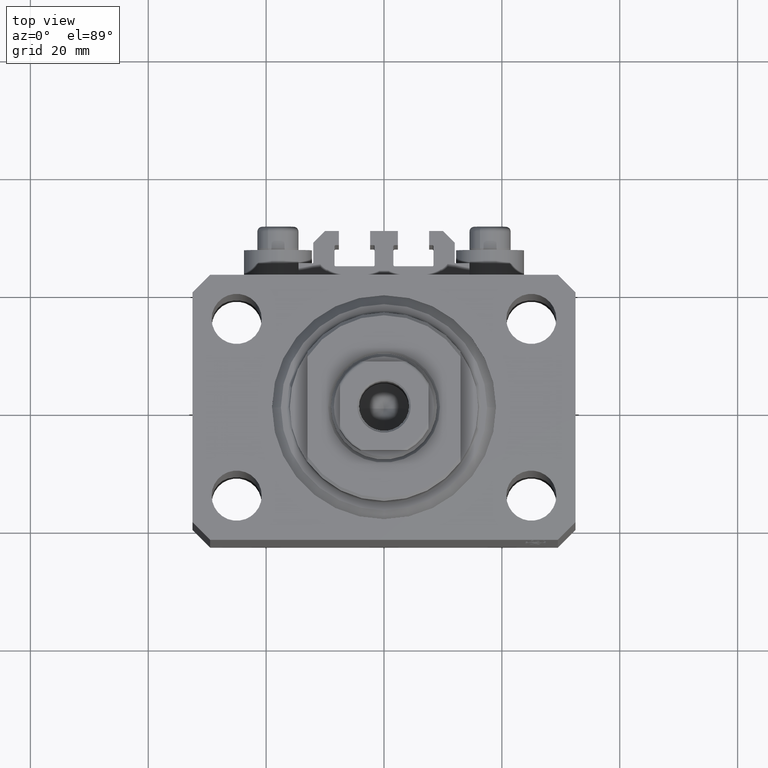
[diagram: clean part render]
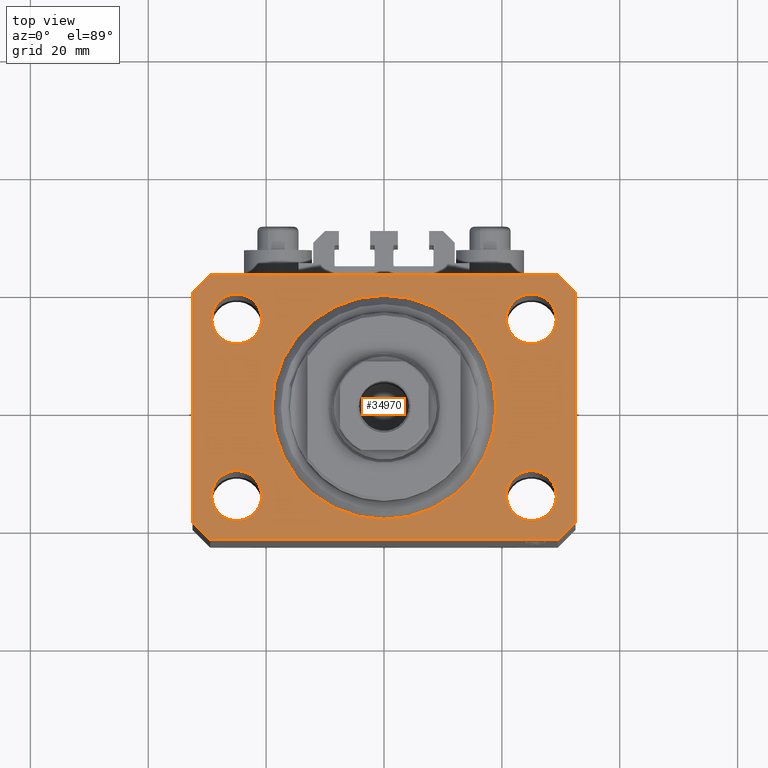
[diagram: same view with one face highlighted and labeled with its STEP entity id]
A machine part, top view. The second image highlights one B-rep face of the part: STEP entity #34970.
In plain terms, the highlighted planar face has unit normal (0, 0, 1).
Its self-contained STEP definition (entity closure, byte-faithful):
#68 = EDGE_CURVE ( 'NONE', #8115, #6733, #39240, .T. ) ;
#290 = EDGE_LOOP ( 'NONE', ( #28153, #42691 ) ) ;
#879 = CARTESIAN_POINT ( 'NONE',  ( -29.49999999999650413, -22.49999999999949907, 0.000000000000000000 ) ) ;
#887 = VECTOR ( 'NONE', #13953, 1000.000000000000000 ) ;
#897 = DIRECTION ( 'NONE',  ( 0.7071067811865483499, 0.7071067811865466846, 0.000000000000000000 ) ) ;
#991 = CARTESIAN_POINT ( 'NONE',  ( 29.24999999995729283, 14.99999999999999289, 0.000000000000000000 ) ) ;
#1006 = LINE ( 'NONE', #1472, #21653 ) ;
#1068 = AXIS2_PLACEMENT_3D ( 'NONE', #28151, #2723, #10377 ) ;
#1396 = EDGE_LOOP ( 'NONE', ( #26197, #27457, #31864, #10192, #42042, #34178, #28741, #5349 ) ) ;
#1472 = CARTESIAN_POINT ( 'NONE',  ( -29.49999999999650413, 22.49999999999949907, 0.000000000000000000 ) ) ;
#1698 = CARTESIAN_POINT ( 'NONE',  ( -32.49999999999650413, -19.49999999999949907, 0.000000000000000000 ) ) ;
#1718 = LINE ( 'NONE', #19705, #9988 ) ;
#1729 = CIRCLE ( 'NONE', #26256, 4.250000000040370374 ) ;
#2010 = ORIENTED_EDGE ( 'NONE', *, *, #22017, .F. ) ;
#2109 = DIRECTION ( 'NONE',  ( 0.000000000000000000, -1.000000000000000000, 0.000000000000000000 ) ) ;
#2191 = VECTOR ( 'NONE', #897, 1000.000000000000000 ) ;
#2291 = CARTESIAN_POINT ( 'NONE',  ( -32.49999999999650413, 19.49999999999949907, 0.000000000000000000 ) ) ;
#2352 = FACE_BOUND ( 'NONE', #11812, .T. ) ;
#2723 = DIRECTION ( 'NONE',  ( 0.000000000000000000, 0.000000000000000000, 1.000000000000000000 ) ) ;
#2943 = DIRECTION ( 'NONE',  ( 1.000000000000000000, 0.000000000000000000, 0.000000000000000000 ) ) ;
#3213 = CARTESIAN_POINT ( 'NONE',  ( 19.00000000000000000, 0.000000000000000000, 0.000000000000000000 ) ) ;
#3452 = EDGE_CURVE ( 'NONE', #25894, #33428, #18579, .T. ) ;
#3905 = CIRCLE ( 'NONE', #43747, 4.250000000021375790 ) ;
#5169 = EDGE_CURVE ( 'NONE', #6733, #8115, #22491, .T. ) ;
#5349 = ORIENTED_EDGE ( 'NONE', *, *, #9355, .T. ) ;
#6464 = VERTEX_POINT ( 'NONE', #43446 ) ;
#6552 = CARTESIAN_POINT ( 'NONE',  ( -29.49999999999650413, -22.49999999999949907, 0.000000000000000000 ) ) ;
#6644 = CARTESIAN_POINT ( 'NONE',  ( -29.25000000002137668, 14.99999999999999645, 0.000000000000000000 ) ) ;
#6672 = DIRECTION ( 'NONE',  ( 0.000000000000000000, 0.000000000000000000, 1.000000000000000000 ) ) ;
#6733 = VERTEX_POINT ( 'NONE', #36664 ) ;
#7051 = EDGE_CURVE ( 'NONE', #45153, #25573, #44754, .T. ) ;
#7227 = DIRECTION ( 'NONE',  ( -1.000000000000000000, -3.528251137580330676E-16, 0.000000000000000000 ) ) ;
#8115 = VERTEX_POINT ( 'NONE', #991 ) ;
#9134 = DIRECTION ( 'NONE',  ( -0.7071067811865474617, -0.7071067811865474617, 0.000000000000000000 ) ) ;
#9311 = LINE ( 'NONE', #15807, #31692 ) ;
#9355 = EDGE_CURVE ( 'NONE', #18087, #41824, #9311, .T. ) ;
#9980 = EDGE_CURVE ( 'NONE', #22540, #46601, #43206, .T. ) ;
#9988 = VECTOR ( 'NONE', #27160, 1000.000000000000000 ) ;
#10192 = ORIENTED_EDGE ( 'NONE', *, *, #33276, .T. ) ;
#10377 = DIRECTION ( 'NONE',  ( 1.000000000000000000, 0.000000000000000000, 0.000000000000000000 ) ) ;
#10410 = DIRECTION ( 'NONE',  ( 1.000000000000000000, 0.000000000000000000, 0.000000000000000000 ) ) ;
#10449 = AXIS2_PLACEMENT_3D ( 'NONE', #34106, #41538, #22824 ) ;
#10713 = DIRECTION ( 'NONE',  ( 0.000000000000000000, 0.000000000000000000, 1.000000000000000000 ) ) ;
#11474 = EDGE_CURVE ( 'NONE', #22201, #25284, #45543, .T. ) ;
#11677 = CARTESIAN_POINT ( 'NONE',  ( 25.00000000000000000, 14.99999999999999289, 0.000000000000000000 ) ) ;
#11812 = EDGE_LOOP ( 'NONE', ( #47429, #20245 ) ) ;
#12198 = DIRECTION ( 'NONE',  ( -0.7071067811865344721, 0.7071067811865606734, 0.000000000000000000 ) ) ;
#12505 = AXIS2_PLACEMENT_3D ( 'NONE', #20979, #43299, #10410 ) ;
#12786 = DIRECTION ( 'NONE',  ( 1.000000000000000000, 0.000000000000000000, 0.000000000000000000 ) ) ;
#13305 = CARTESIAN_POINT ( 'NONE',  ( -24.99999999999999289, -15.00000000000000355, 0.000000000000000000 ) ) ;
#13410 = VECTOR ( 'NONE', #16081, 1000.000000000000114 ) ;
#13720 = CARTESIAN_POINT ( 'NONE',  ( 24.99999999999999289, -15.00000000000000355, 0.000000000000000000 ) ) ;
#13840 = PLANE ( 'NONE',  #19497 ) ;
#13953 = DIRECTION ( 'NONE',  ( 1.000000000000000000, 1.176083712526788232E-16, 0.000000000000000000 ) ) ;
#14808 = AXIS2_PLACEMENT_3D ( 'NONE', #34375, #44475, #37993 ) ;
#15771 = LINE ( 'NONE', #45285, #2191 ) ;
#15807 = CARTESIAN_POINT ( 'NONE',  ( 32.49999999999702993, 19.49999999999945999, 0.000000000000000000 ) ) ;
#16081 = DIRECTION ( 'NONE',  ( 0.7071067811865474617, -0.7071067811865474617, 0.000000000000000000 ) ) ;
#16086 = CARTESIAN_POINT ( 'NONE',  ( -25.00000000000000000, 14.99999999999999645, 0.000000000000000000 ) ) ;
#16993 = EDGE_LOOP ( 'NONE', ( #2010, #23610 ) ) ;
#17423 = ORIENTED_EDGE ( 'NONE', *, *, #34466, .F. ) ;
#17473 = EDGE_CURVE ( 'NONE', #46601, #22540, #20405, .T. ) ;
#18087 = VERTEX_POINT ( 'NONE', #18906 ) ;
#18579 = CIRCLE ( 'NONE', #45420, 4.249999999976314058 ) ;
#18906 = CARTESIAN_POINT ( 'NONE',  ( 32.49999999999702993, 19.49999999999945999, 0.000000000000000000 ) ) ;
#19497 = AXIS2_PLACEMENT_3D ( 'NONE', #43141, #6672, #42181 ) ;
#19705 = CARTESIAN_POINT ( 'NONE',  ( 32.49999999999651124, -19.49999999999949196, 0.000000000000000000 ) ) ;
#20245 = ORIENTED_EDGE ( 'NONE', *, *, #7051, .F. ) ;
#20405 = CIRCLE ( 'NONE', #10449, 19.00000000000000000 ) ;
#20415 = LINE ( 'NONE', #1698, #13410 ) ;
#20512 = DIRECTION ( 'NONE',  ( 0.000000000000000000, 0.000000000000000000, 1.000000000000000000 ) ) ;
#20834 = CIRCLE ( 'NONE', #26953, 4.250000000021375790 ) ;
#20871 = EDGE_CURVE ( 'NONE', #6464, #28028, #15771, .T. ) ;
#20979 = CARTESIAN_POINT ( 'NONE',  ( 0.000000000000000000, 0.000000000000000000, 0.000000000000000000 ) ) ;
#21411 = LINE ( 'NONE', #6552, #887 ) ;
#21648 = EDGE_LOOP ( 'NONE', ( #25799, #35412 ) ) ;
#21653 = VECTOR ( 'NONE', #9134, 1000.000000000000114 ) ;
#22017 = EDGE_CURVE ( 'NONE', #31963, #39862, #3905, .T. ) ;
#22090 = LINE ( 'NONE', #32439, #39912 ) ;
#22175 = CARTESIAN_POINT ( 'NONE',  ( -29.49999999999650413, 22.49999999999949907, 0.000000000000000000 ) ) ;
#22201 = VERTEX_POINT ( 'NONE', #2291 ) ;
#22491 = CIRCLE ( 'NONE', #14808, 4.249999999957291053 ) ;
#22540 = VERTEX_POINT ( 'NONE', #45192 ) ;
#22608 = EDGE_CURVE ( 'NONE', #44576, #6464, #21411, .T. ) ;
#22824 = DIRECTION ( 'NONE',  ( 1.000000000000000000, 0.000000000000000000, 0.000000000000000000 ) ) ;
#23191 = VERTEX_POINT ( 'NONE', #22175 ) ;
#23305 = AXIS2_PLACEMENT_3D ( 'NONE', #13720, #39887, #2943 ) ;
#23610 = ORIENTED_EDGE ( 'NONE', *, *, #24731, .F. ) ;
#24022 = DIRECTION ( 'NONE',  ( 1.000000000000000000, 0.000000000000000000, 0.000000000000000000 ) ) ;
#24088 = VECTOR ( 'NONE', #2109, 1000.000000000000000 ) ;
#24124 = DIRECTION ( 'NONE',  ( 1.000000000000000000, 0.000000000000000000, 0.000000000000000000 ) ) ;
#24731 = EDGE_CURVE ( 'NONE', #39862, #31963, #20834, .T. ) ;
#25284 = VERTEX_POINT ( 'NONE', #46168 ) ;
#25351 = DIRECTION ( 'NONE',  ( 1.000000000000000000, 0.000000000000000000, 0.000000000000000000 ) ) ;
#25573 = VERTEX_POINT ( 'NONE', #27614 ) ;
#25799 = ORIENTED_EDGE ( 'NONE', *, *, #17473, .F. ) ;
#25860 = DIRECTION ( 'NONE',  ( 1.000000000000000000, 0.000000000000000000, 0.000000000000000000 ) ) ;
#25894 = VERTEX_POINT ( 'NONE', #26847 ) ;
#26197 = ORIENTED_EDGE ( 'NONE', *, *, #47175, .T. ) ;
#26256 = AXIS2_PLACEMENT_3D ( 'NONE', #13305, #20512, #24124 ) ;
#26684 = EDGE_LOOP ( 'NONE', ( #17423, #40384 ) ) ;
#26847 = CARTESIAN_POINT ( 'NONE',  ( 20.75000000002367884, -15.00000000000000355, 0.000000000000000000 ) ) ;
#26953 = AXIS2_PLACEMENT_3D ( 'NONE', #16086, #35296, #24022 ) ;
#27160 = DIRECTION ( 'NONE',  ( 1.334402673828349134E-14, 1.000000000000000000, 0.000000000000000000 ) ) ;
#27457 = ORIENTED_EDGE ( 'NONE', *, *, #28914, .T. ) ;
#27536 = FACE_BOUND ( 'NONE', #290, .T. ) ;
#27614 = CARTESIAN_POINT ( 'NONE',  ( -20.74999999995962341, -15.00000000000000355, 0.000000000000000000 ) ) ;
#28028 = VERTEX_POINT ( 'NONE', #41003 ) ;
#28151 = CARTESIAN_POINT ( 'NONE',  ( -24.99999999999999289, -15.00000000000000355, 0.000000000000000000 ) ) ;
#28153 = ORIENTED_EDGE ( 'NONE', *, *, #68, .F. ) ;
#28505 = FACE_BOUND ( 'NONE', #21648, .T. ) ;
#28741 = ORIENTED_EDGE ( 'NONE', *, *, #46752, .T. ) ;
#28914 = EDGE_CURVE ( 'NONE', #23191, #22201, #1006, .T. ) ;
#28966 = CARTESIAN_POINT ( 'NONE',  ( -25.00000000000000000, 14.99999999999999645, 0.000000000000000000 ) ) ;
#31046 = CARTESIAN_POINT ( 'NONE',  ( 24.99999999999999289, -15.00000000000000355, 0.000000000000000000 ) ) ;
#31362 = CARTESIAN_POINT ( 'NONE',  ( 29.49999999999707967, 22.49999999999952038, 0.000000000000000000 ) ) ;
#31692 = VECTOR ( 'NONE', #12198, 1000.000000000000000 ) ;
#31864 = ORIENTED_EDGE ( 'NONE', *, *, #11474, .T. ) ;
#31963 = VERTEX_POINT ( 'NONE', #32988 ) ;
#32112 = FACE_BOUND ( 'NONE', #26684, .T. ) ;
#32439 = CARTESIAN_POINT ( 'NONE',  ( 29.49999999999707967, 22.49999999999952038, 0.000000000000000000 ) ) ;
#32615 = CARTESIAN_POINT ( 'NONE',  ( -29.25000000004036593, -15.00000000000000355, 0.000000000000000000 ) ) ;
#32988 = CARTESIAN_POINT ( 'NONE',  ( -20.74999999997862687, 14.99999999999999645, 0.000000000000000000 ) ) ;
#33276 = EDGE_CURVE ( 'NONE', #25284, #44576, #20415, .T. ) ;
#33428 = VERTEX_POINT ( 'NONE', #42969 ) ;
#33764 = DIRECTION ( 'NONE',  ( 0.000000000000000000, 0.000000000000000000, 1.000000000000000000 ) ) ;
#33830 = AXIS2_PLACEMENT_3D ( 'NONE', #11677, #33764, #25860 ) ;
#34025 = CARTESIAN_POINT ( 'NONE',  ( -32.49999999999650413, 19.49999999999949907, 0.000000000000000000 ) ) ;
#34106 = CARTESIAN_POINT ( 'NONE',  ( 0.000000000000000000, 0.000000000000000000, 0.000000000000000000 ) ) ;
#34178 = ORIENTED_EDGE ( 'NONE', *, *, #20871, .T. ) ;
#34375 = CARTESIAN_POINT ( 'NONE',  ( 25.00000000000000000, 14.99999999999999289, 0.000000000000000000 ) ) ;
#34466 = EDGE_CURVE ( 'NONE', #33428, #25894, #44013, .T. ) ;
#34970 = ADVANCED_FACE ( 'NONE', ( #28505, #2352, #32112, #27536, #35709, #46743 ), #13840, .T. ) ;
#35296 = DIRECTION ( 'NONE',  ( 0.000000000000000000, 0.000000000000000000, 1.000000000000000000 ) ) ;
#35412 = ORIENTED_EDGE ( 'NONE', *, *, #9980, .F. ) ;
#35709 = FACE_BOUND ( 'NONE', #16993, .T. ) ;
#36664 = CARTESIAN_POINT ( 'NONE',  ( 20.75000000004271072, 14.99999999999999289, 0.000000000000000000 ) ) ;
#37993 = DIRECTION ( 'NONE',  ( 1.000000000000000000, 0.000000000000000000, 0.000000000000000000 ) ) ;
#38719 = EDGE_CURVE ( 'NONE', #25573, #45153, #1729, .T. ) ;
#39240 = CIRCLE ( 'NONE', #33830, 4.249999999957291053 ) ;
#39862 = VERTEX_POINT ( 'NONE', #6644 ) ;
#39887 = DIRECTION ( 'NONE',  ( 0.000000000000000000, 0.000000000000000000, 1.000000000000000000 ) ) ;
#39912 = VECTOR ( 'NONE', #7227, 1000.000000000000000 ) ;
#40384 = ORIENTED_EDGE ( 'NONE', *, *, #3452, .F. ) ;
#41003 = CARTESIAN_POINT ( 'NONE',  ( 32.49999999999651124, -19.49999999999949196, 0.000000000000000000 ) ) ;
#41538 = DIRECTION ( 'NONE',  ( 0.000000000000000000, 0.000000000000000000, 1.000000000000000000 ) ) ;
#41824 = VERTEX_POINT ( 'NONE', #31362 ) ;
#42042 = ORIENTED_EDGE ( 'NONE', *, *, #22608, .T. ) ;
#42181 = DIRECTION ( 'NONE',  ( 1.000000000000000000, 0.000000000000000000, -0.000000000000000000 ) ) ;
#42691 = ORIENTED_EDGE ( 'NONE', *, *, #5169, .F. ) ;
#42969 = CARTESIAN_POINT ( 'NONE',  ( 29.24999999997631051, -15.00000000000000355, 0.000000000000000000 ) ) ;
#43141 = CARTESIAN_POINT ( 'NONE',  ( 0.000000000000000000, 0.000000000000000000, 0.000000000000000000 ) ) ;
#43206 = CIRCLE ( 'NONE', #12505, 19.00000000000000000 ) ;
#43299 = DIRECTION ( 'NONE',  ( 0.000000000000000000, 0.000000000000000000, 1.000000000000000000 ) ) ;
#43446 = CARTESIAN_POINT ( 'NONE',  ( 29.49999999999650413, -22.49999999999949196, 0.000000000000000000 ) ) ;
#43747 = AXIS2_PLACEMENT_3D ( 'NONE', #28966, #10713, #25351 ) ;
#44013 = CIRCLE ( 'NONE', #23305, 4.249999999976314058 ) ;
#44475 = DIRECTION ( 'NONE',  ( 0.000000000000000000, 0.000000000000000000, 1.000000000000000000 ) ) ;
#44576 = VERTEX_POINT ( 'NONE', #879 ) ;
#44754 = CIRCLE ( 'NONE', #1068, 4.250000000040370374 ) ;
#45153 = VERTEX_POINT ( 'NONE', #32615 ) ;
#45192 = CARTESIAN_POINT ( 'NONE',  ( -19.00000000000000000, 2.326828918379970970E-15, 0.000000000000000000 ) ) ;
#45285 = CARTESIAN_POINT ( 'NONE',  ( 29.49999999999650413, -22.49999999999949196, 0.000000000000000000 ) ) ;
#45420 = AXIS2_PLACEMENT_3D ( 'NONE', #31046, #45685, #12786 ) ;
#45543 = LINE ( 'NONE', #34025, #24088 ) ;
#45685 = DIRECTION ( 'NONE',  ( 0.000000000000000000, 0.000000000000000000, 1.000000000000000000 ) ) ;
#46168 = CARTESIAN_POINT ( 'NONE',  ( -32.49999999999650413, -19.49999999999949907, 0.000000000000000000 ) ) ;
#46601 = VERTEX_POINT ( 'NONE', #3213 ) ;
#46743 = FACE_OUTER_BOUND ( 'NONE', #1396, .T. ) ;
#46752 = EDGE_CURVE ( 'NONE', #28028, #18087, #1718, .T. ) ;
#47175 = EDGE_CURVE ( 'NONE', #41824, #23191, #22090, .T. ) ;
#47429 = ORIENTED_EDGE ( 'NONE', *, *, #38719, .F. ) ;